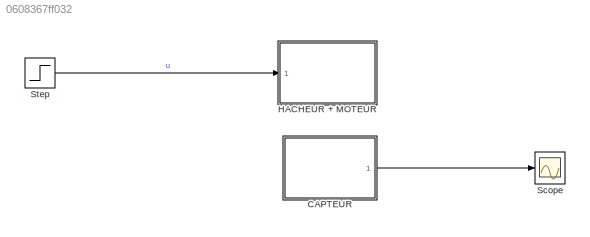
MODEL slx_0608367ff032
KIND model
CONFIG AbsTol = auto
CONFIG EnableMultiTasking = on
CONFIG FixedStep = auto
CONFIG MaxStep = auto
CONFIG MinStep = auto
CONFIG RelTol = 1e-3
CONFIG SampleTimeConstraint = Unconstrained
CONFIG SolverName = FixedStepAuto
CONFIG StartTime = 0.0
CONFIG StopTime = 2
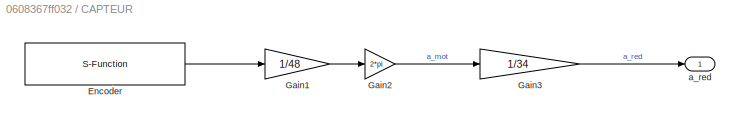
BLOCK [SubSystem] CAPTEUR
  Ports = [0, 1]
  RequestExecContextInheritance = off
BLOCK [S-Function] CAPTEUR/Encoder
  CopyFcn = set_param(gcbh,'LinkStatus','none')
  EnableBusSupport = off
  FunctionName = sfcn_encoder
  InitFcn = try, set_param(gcb,'FunctionName','sfcn_encoder'), end
  OpenFcn = sfunctionwizard(gcbh)
  Parameters = uint8(0),uint8(2),uint8(3)
  Ports = [0, 1]
  PreSaveFcn = try, set_param(gcb,'FunctionName','sfcn_encoder'), end
  SFcnIsStateOwnerBlock = off
  SFunctionDeploymentMode = off
  SFunctionModules = sfcn_encoder_wrapper
BLOCK [Gain] CAPTEUR/Gain1
  Gain = 1/48
BLOCK [Gain] CAPTEUR/Gain2
  Gain = 2*pi
BLOCK [Gain] CAPTEUR/Gain3
  Gain = 1/34
BLOCK [Outport] CAPTEUR/a_red
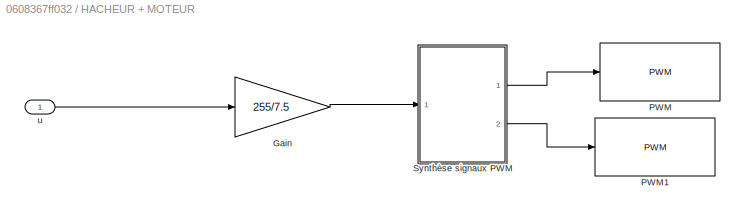
BLOCK [SubSystem] HACHEUR + MOTEUR
  Ports = [1]
  RequestExecContextInheritance = off
BLOCK [Gain] HACHEUR + MOTEUR/Gain
  Gain = 255/7.5
BLOCK [Reference] HACHEUR + MOTEUR/PWM  REF=arduinolib/PWM
  Ports = [1]
  SourceBlock = arduinolib/PWM
  SourceProductBaseCode = ARDUINO
  SourceType = Arduino PWM
BLOCK [Reference] HACHEUR + MOTEUR/PWM1  REF=arduinolib/PWM
  Ports = [1]
  SourceBlock = arduinolib/PWM
  SourceProductBaseCode = ARDUINO
  SourceType = Arduino PWM
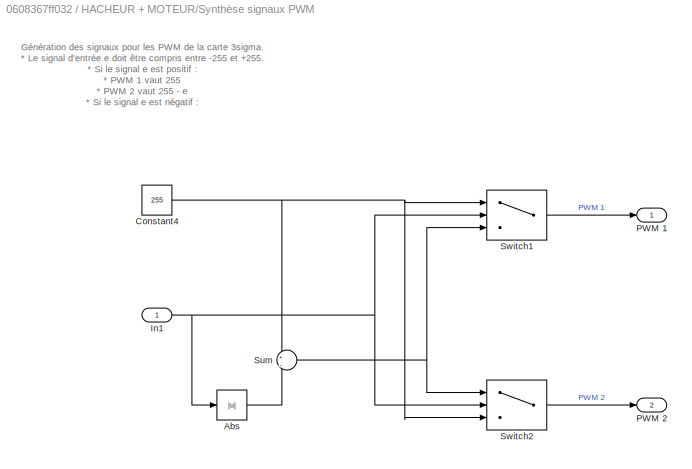
BLOCK [SubSystem] HACHEUR + MOTEUR/Synthèse signaux PWM
  Ports = [1, 2]
  RequestExecContextInheritance = off
BLOCK [Abs] HACHEUR + MOTEUR/Synthèse signaux PWM/Abs
  SaturateOnIntegerOverflow = off
BLOCK [Constant] HACHEUR + MOTEUR/Synthèse signaux PWM/Constant4
  Value = 255
BLOCK [Inport] HACHEUR + MOTEUR/Synthèse signaux PWM/In1
BLOCK [Outport] HACHEUR + MOTEUR/Synthèse signaux PWM/PWM 1
BLOCK [Outport] HACHEUR + MOTEUR/Synthèse signaux PWM/PWM 2
  Port = 2
BLOCK [Sum] HACHEUR + MOTEUR/Synthèse signaux PWM/Sum
  Inputs = +|-
  Ports = [2, 1]
BLOCK [Switch] HACHEUR + MOTEUR/Synthèse signaux PWM/Switch1
  Criteria = u2 > Threshold
  InputSameDT = off
  SaturateOnIntegerOverflow = off
BLOCK [Switch] HACHEUR + MOTEUR/Synthèse signaux PWM/Switch2
  Criteria = u2 > Threshold
  InputSameDT = off
  SaturateOnIntegerOverflow = off
BLOCK [Inport] HACHEUR + MOTEUR/u
BLOCK [Scope] Scope
  Floating = off
  NumInputPorts = 1
  Ports = [1]
  ScopeSpecificationString = Simulink.scopes.TimeScopeBlockCfg('CurrentConfiguration', extmgr.ConfigurationSet(extmgr.Configuration('Core','General UI',true),extmgr.Configuration('Core','Source UI',true),extmgr.Configuration('Sources','WiredSimulink',true,'DataLoggingVariableName','ScopeData1'),extmgr.Configuration('Visuals','Time Domain',true,'SerializedDisplays',{struct('MinYLimReal','-3.96399','MaxYLimReal','35.67588','YLa...<+1743ch>
BLOCK [Step] Step
  After = 6
  SampleTime = 0
  Time = 0.2
ANNOTATION HACHEUR + MOTEUR/Synthèse signaux PWM: Génération des signaux pour les PWM de la carte 3sigma. * Le signal d'entrée e doit être compris entre -255 et +255. * Si le signal e est positif : * PWM 1 vaut 255 * PWM 2 vaut 255 - e * Si le signal e est négatif : * PWM 1 vaut 255 - |e| * PWM 2 vaut 255
LINE CAPTEUR/Encoder:1 -> CAPTEUR/Gain1:1
LINE CAPTEUR/Gain1:1 -> CAPTEUR/Gain2:1
LINE CAPTEUR/Gain2:1 -> CAPTEUR/Gain3:1
LINE CAPTEUR/Gain3:1 -> CAPTEUR/a_red:1
LINE CAPTEUR:1 -> Scope:1
LINE HACHEUR + MOTEUR/Gain:1 -> HACHEUR + MOTEUR/Synthèse signaux PWM:1
LINE HACHEUR + MOTEUR/Synthèse signaux PWM/Abs:1 -> HACHEUR + MOTEUR/Synthèse signaux PWM/Sum:2
NET HACHEUR + MOTEUR/Synthèse signaux PWM/Constant4:1 -> HACHEUR + MOTEUR/Synthèse signaux PWM/Sum:1, HACHEUR + MOTEUR/Synthèse signaux PWM/Switch1:1, HACHEUR + MOTEUR/Synthèse signaux PWM/Switch2:3
NET HACHEUR + MOTEUR/Synthèse signaux PWM/In1:1 -> HACHEUR + MOTEUR/Synthèse signaux PWM/Abs:1, HACHEUR + MOTEUR/Synthèse signaux PWM/Switch1:2, HACHEUR + MOTEUR/Synthèse signaux PWM/Switch2:2
NET HACHEUR + MOTEUR/Synthèse signaux PWM/Sum:1 -> HACHEUR + MOTEUR/Synthèse signaux PWM/Switch1:3, HACHEUR + MOTEUR/Synthèse signaux PWM/Switch2:1
LINE HACHEUR + MOTEUR/Synthèse signaux PWM/Switch1:1 -> HACHEUR + MOTEUR/Synthèse signaux PWM/PWM 1:1
LINE HACHEUR + MOTEUR/Synthèse signaux PWM/Switch2:1 -> HACHEUR + MOTEUR/Synthèse signaux PWM/PWM 2:1
LINE HACHEUR + MOTEUR/Synthèse signaux PWM:1 -> HACHEUR + MOTEUR/PWM:1
LINE HACHEUR + MOTEUR/Synthèse signaux PWM:2 -> HACHEUR + MOTEUR/PWM1:1
LINE HACHEUR + MOTEUR/u:1 -> HACHEUR + MOTEUR/Gain:1
LINE Step:1 -> HACHEUR + MOTEUR:1
note: NET lines group one-source signal fan-out (src -> all destinations, sorted); 1:1 wires keep LINE
